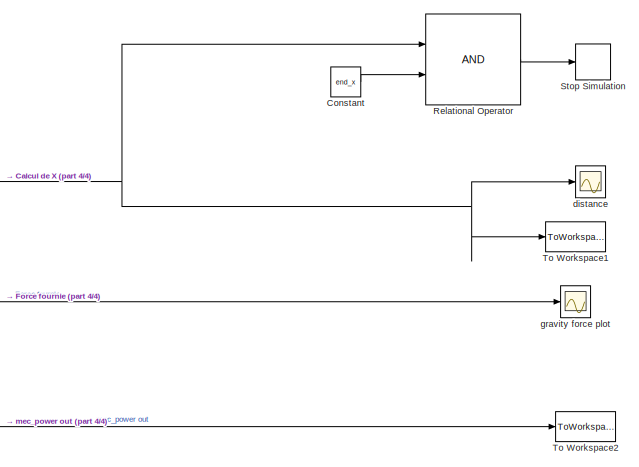
[diagram: root canvas - part 1/4, top right region]
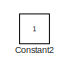
[diagram: root canvas - part 2/4, top left region]
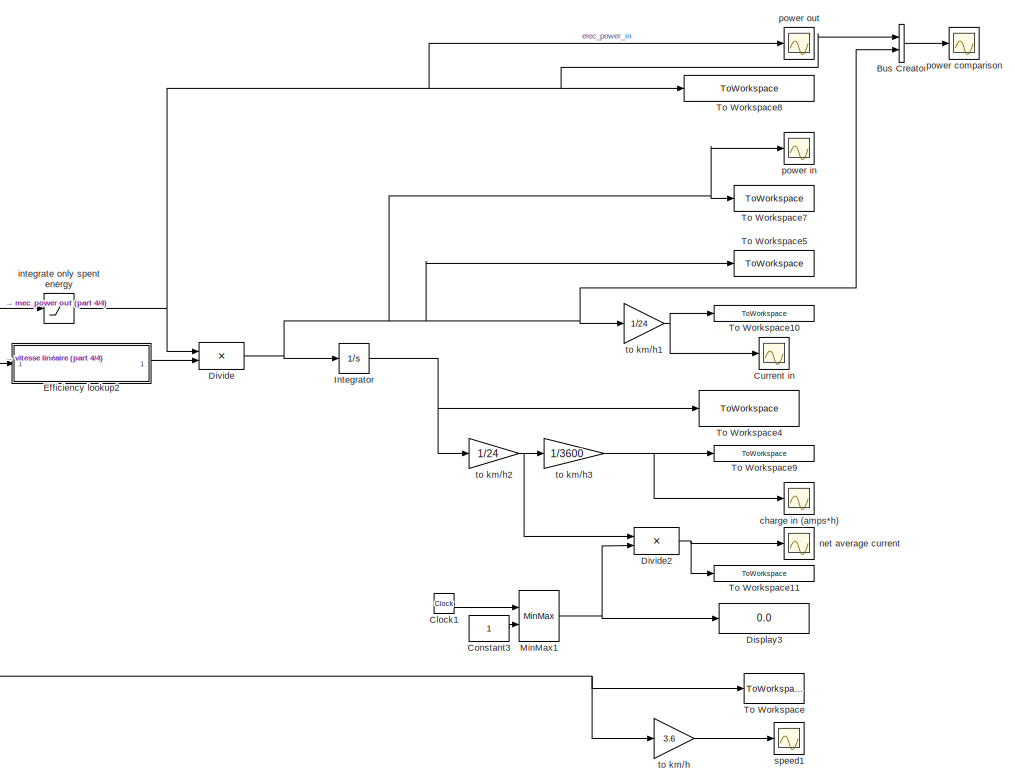
[diagram: root canvas - part 3/4, bottom right region]
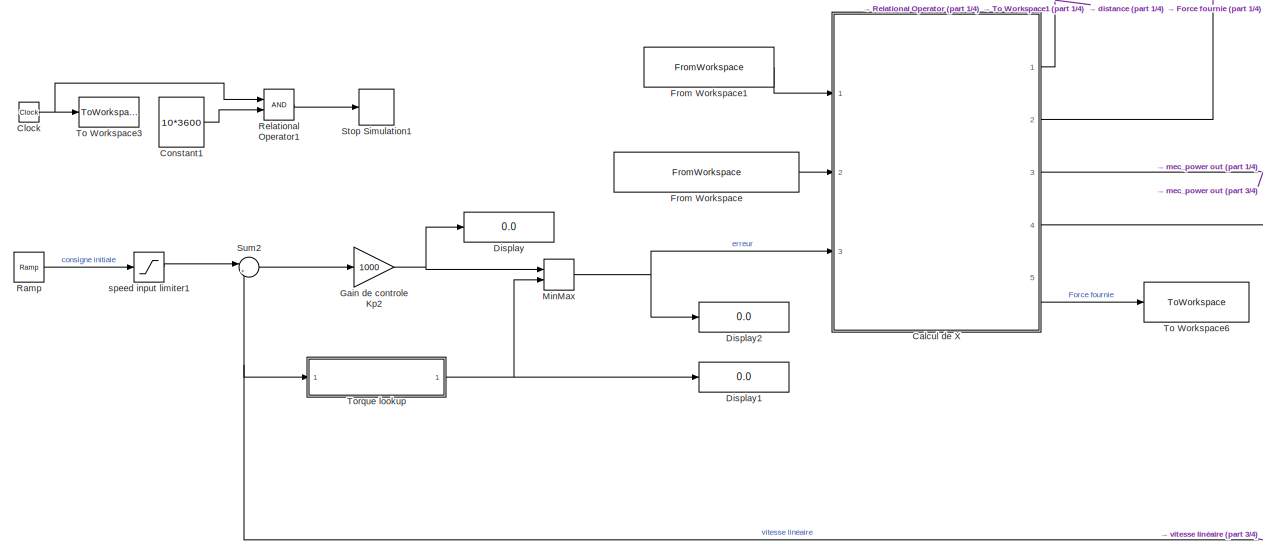
[diagram: root canvas - part 4/4, bottom center region]
MODEL slx_cfe043cab282
KIND model
CONFIG AbsTol = auto
CONFIG FixedStep = 0.2
CONFIG MaxStep = auto
CONFIG MinStep = auto
CONFIG RelTol = 0.001
CONFIG SampleTimeConstraint = Unconstrained
CONFIG Solver = ode45
CONFIG SolverMode = Auto
CONFIG SolverName = ode45
CONFIG StartTime = 0.0
CONFIG StopTime = 3600 *10
BLOCK [BusCreator] Bus Creator
  DisplayOption = bar
  Inputs = 2
  Ports = [2, 1]
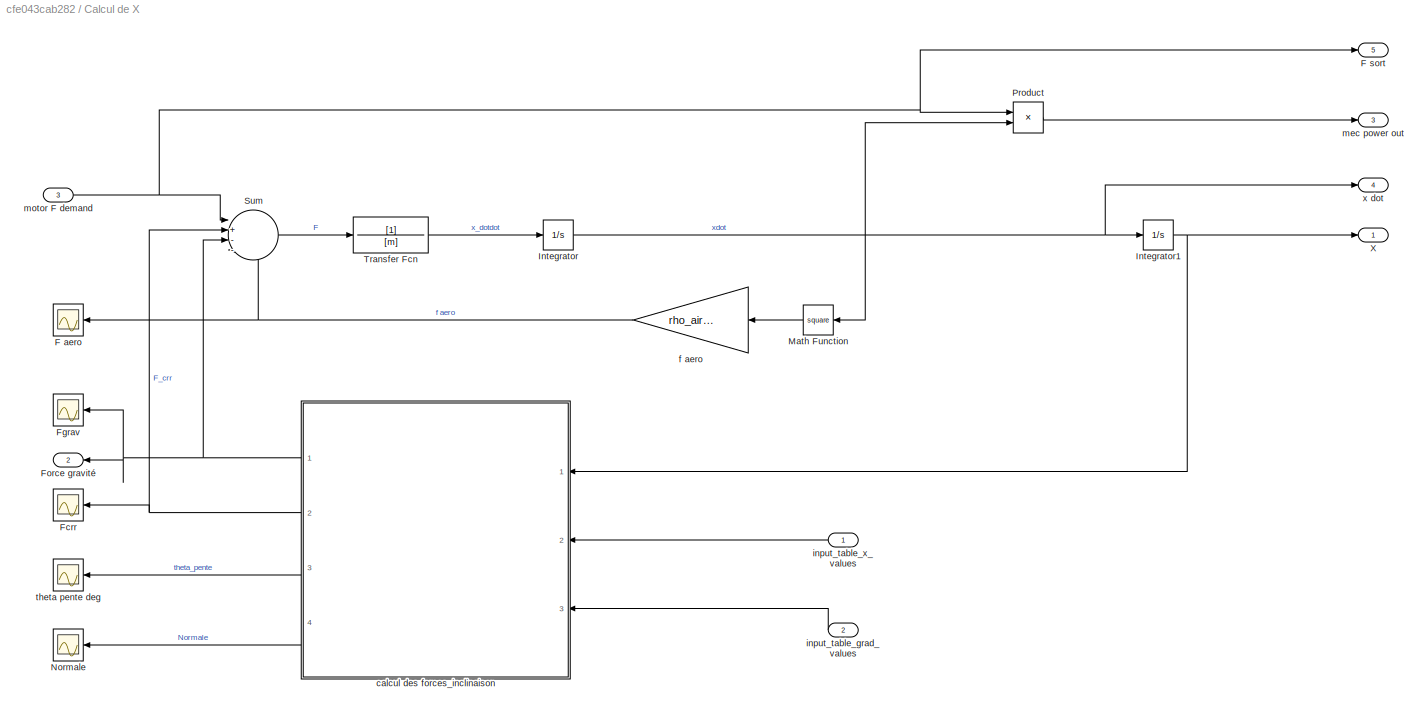
BLOCK [SubSystem] Calcul de X
  Ports = [3, 5]
  RequestExecContextInheritance = off
BLOCK [Scope] Calcul de X/F aero
  Floating = off
  MaxDataPoints = scope_history
  NumInputPorts = 1
  Ports = [1]
  SaveName = ScopeData14
  ZoomMode = xonly
BLOCK [Outport] Calcul de X/F sort
  IconDisplay = Port number
  Port = 5
BLOCK [Scope] Calcul de X/Fcrr
  Floating = off
  MaxDataPoints = scope_history
  NumInputPorts = 1
  Ports = [1]
  SaveName = ScopeData10
BLOCK [Scope] Calcul de X/Fgrav
  Floating = off
  MaxDataPoints = scope_history*3
  NumInputPorts = 1
  Ports = [1]
  SaveName = ScopeData9
  YMax = 70
  YMin = -70
BLOCK [Outport] Calcul de X/Force gravité
  IconDisplay = Port number
  Port = 2
BLOCK [Integrator] Calcul de X/Integrator
  Ports = [1, 1]
BLOCK [Integrator] Calcul de X/Integrator1
  Ports = [1, 1]
BLOCK [Math] Calcul de X/Math Function
  Operator = square
  Ports = [1, 1]
BLOCK [Scope] Calcul de X/Normale
  Floating = off
  MaxDataPoints = scope_history
  NumInputPorts = 1
  Ports = [1]
  SaveName = ScopeData2
BLOCK [Product] Calcul de X/Product
  InputSameDT = off
  OutDataTypeStr = Inherit: Inherit via internal rule
  Ports = [2, 1]
  RndMeth = Floor
  SaturateOnIntegerOverflow = off
BLOCK [Sum] Calcul de X/Sum
  IconShape = round
  InputSameDT = off
  Inputs = |+---
  OutDataTypeStr = Inherit: Inherit via internal rule
  Ports = [4, 1]
  SaturateOnIntegerOverflow = off
BLOCK [TransferFcn] Calcul de X/Transfer Fcn
  Denominator = [m]
BLOCK [Outport] Calcul de X/X
  IconDisplay = Port number
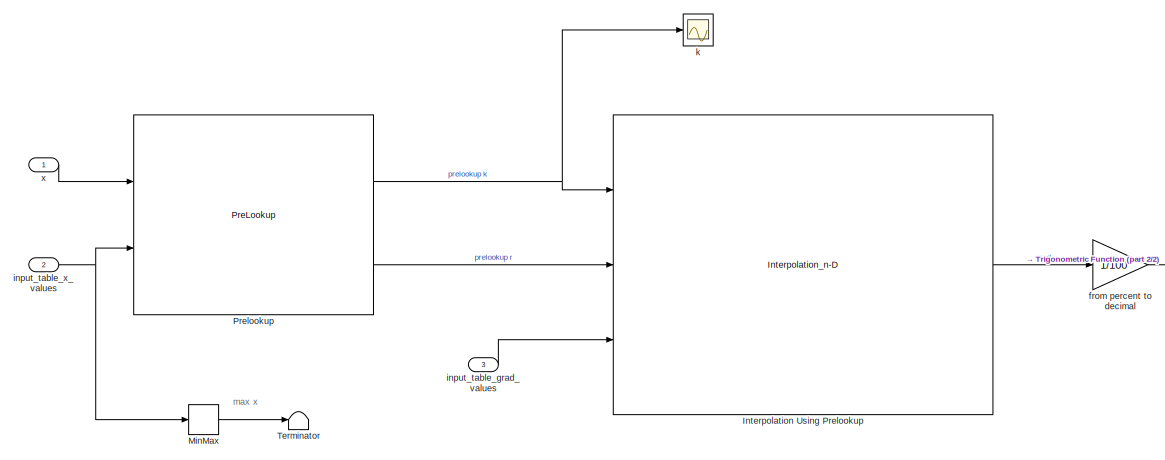
[diagram: Calcul de X/calcul des forces_inclinaison - part 1/2, left side, full height]
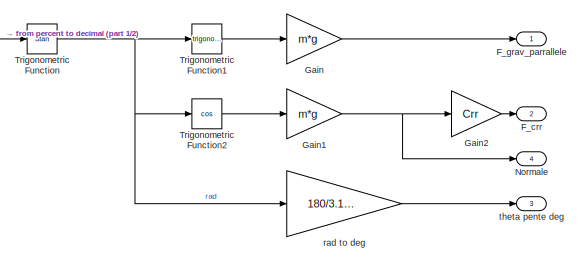
[diagram: Calcul de X/calcul des forces_inclinaison - part 2/2, bottom right region]
BLOCK [SubSystem] Calcul de X/calcul des forces_inclinaison
  Ports = [3, 4]
  RequestExecContextInheritance = off
BLOCK [Outport] Calcul de X/calcul des forces_inclinaison/F_crr
  IconDisplay = Port number
  Port = 2
BLOCK [Outport] Calcul de X/calcul des forces_inclinaison/F_grav_parrallele
  IconDisplay = Port number
BLOCK [Gain] Calcul de X/calcul des forces_inclinaison/Gain
  Gain = m*g
  OutDataTypeStr = Inherit: Inherit via internal rule
  ParamDataTypeStr = Inherit: Inherit via internal rule
  SaturateOnIntegerOverflow = off
BLOCK [Gain] Calcul de X/calcul des forces_inclinaison/Gain1
  Gain = m*g
  OutDataTypeStr = Inherit: Inherit via internal rule
  ParamDataTypeStr = Inherit: Inherit via internal rule
  SaturateOnIntegerOverflow = off
BLOCK [Gain] Calcul de X/calcul des forces_inclinaison/Gain2
  Gain = Crr
  OutDataTypeStr = Inherit: Inherit via internal rule
  ParamDataTypeStr = Inherit: Inherit via internal rule
  SaturateOnIntegerOverflow = off
BLOCK [Interpolation_n-D] Calcul de X/calcul des forces_inclinaison/Interpolation Using Prelookup
  InputPortMap = u0,u1,p2
  IntermediateResultsDataTypeStr = Inherit: Inherit via internal rule
  InternalRulePriority = Speed
  NumberOfTableDimensions = 1
  Ports = [3, 1]
  TableSource = Input port
BLOCK [MinMax] Calcul de X/calcul des forces_inclinaison/MinMax
  Function = max
  InputSameDT = off
  Ports = [1, 1]
  SaturateOnIntegerOverflow = off
BLOCK [Outport] Calcul de X/calcul des forces_inclinaison/Normale
  IconDisplay = Port number
  Port = 4
BLOCK [PreLookup] Calcul de X/calcul des forces_inclinaison/Prelookup
  BreakpointsData = [10:10:110]
  BreakpointsDataSource = Input port
  ExtrapMethod = Linear
  InputPortMap = u0,p1
  Ports = [2, 2]
BLOCK [Terminator] Calcul de X/calcul des forces_inclinaison/Terminator
BLOCK [Trigonometry] Calcul de X/calcul des forces_inclinaison/Trigonometric Function
  Operator = atan
  Ports = [1, 1]
BLOCK [Trigonometry] Calcul de X/calcul des forces_inclinaison/Trigonometric Function1
  Ports = [1, 1]
BLOCK [Trigonometry] Calcul de X/calcul des forces_inclinaison/Trigonometric Function2
  Operator = cos
  Ports = [1, 1]
BLOCK [Gain] Calcul de X/calcul des forces_inclinaison/from percent to decimal
  Gain = 1/100
  OutDataTypeStr = Inherit: Inherit via internal rule
  ParamDataTypeStr = Inherit: Inherit via internal rule
  SaturateOnIntegerOverflow = off
BLOCK [Inport] Calcul de X/calcul des forces_inclinaison/input_table_grad_values
  IconDisplay = Port number
  Port = 3
BLOCK [Inport] Calcul de X/calcul des forces_inclinaison/input_table_x_values
  IconDisplay = Port number
  Port = 2
BLOCK [Scope] Calcul de X/calcul des forces_inclinaison/k
  Floating = off
  MaxDataPoints = scope_history
  NumInputPorts = 1
  Ports = [1]
  SaveName = ScopeData8
BLOCK [Gain] Calcul de X/calcul des forces_inclinaison/rad to deg
  Gain = 180/3.1416
  OutDataTypeStr = Inherit: Inherit via internal rule
  ParamDataTypeStr = Inherit: Inherit via internal rule
  SaturateOnIntegerOverflow = off
BLOCK [Outport] Calcul de X/calcul des forces_inclinaison/theta pente deg
  IconDisplay = Port number
  Port = 3
BLOCK [Inport] Calcul de X/calcul des forces_inclinaison/x
  IconDisplay = Port number
BLOCK [Gain] Calcul de X/f aero
  Gain = rho_air*area/2*Cd
  OutDataTypeStr = Inherit: Inherit via internal rule
  ParamDataTypeStr = Inherit: Inherit via internal rule
  SaturateOnIntegerOverflow = off
BLOCK [Inport] Calcul de X/input_table_grad_values
  IconDisplay = Port number
  Port = 2
BLOCK [Inport] Calcul de X/input_table_x_values
  IconDisplay = Port number
BLOCK [Outport] Calcul de X/mec power out
  IconDisplay = Port number
  Port = 3
BLOCK [Inport] Calcul de X/motor F demand
  IconDisplay = Port number
  Port = 3
BLOCK [Scope] Calcul de X/theta pente deg 
  Floating = off
  MaxDataPoints = scope_history*3
  NumInputPorts = 1
  Ports = [1]
  SaveName = gradiant
  SaveToWorkspace = on
  YMax = 17.5
  YMin = -15
BLOCK [Outport] Calcul de X/x dot
  IconDisplay = Port number
  Port = 4
BLOCK [Clock] Clock
BLOCK [Clock] Clock1
BLOCK [Constant] Constant
  Value = end_x
BLOCK [Constant] Constant1
  Value = 10*3600
BLOCK [Constant] Constant2
  IOType = siggen
BLOCK [Constant] Constant3
BLOCK [Scope] Current in
  Floating = off
  MaxDataPoints = scope_history*3
  NumInputPorts = 1
  Ports = [1]
  SaveName = ScopeData5
  TimeRange = 10000
  YMax = 40
  YMin = 0
  ZoomMode = xonly
BLOCK [Display] Display
  Decimation = 1
  Ports = [1]
BLOCK [Display] Display1
  Decimation = 1
  Ports = [1]
BLOCK [Display] Display2
  Decimation = 1
  Ports = [1]
BLOCK [Display] Display3
  Decimation = 1
  Ports = [1]
BLOCK [Product] Divide
  InputSameDT = off
  Inputs = */
  OutDataTypeStr = Inherit: Inherit via internal rule
  Ports = [2, 1]
  RndMeth = Floor
  SaturateOnIntegerOverflow = off
BLOCK [Product] Divide2
  InputSameDT = off
  Inputs = */
  OutDataTypeStr = Inherit: Inherit via internal rule
  Ports = [2, 1]
  RndMeth = Floor
  SaturateOnIntegerOverflow = off
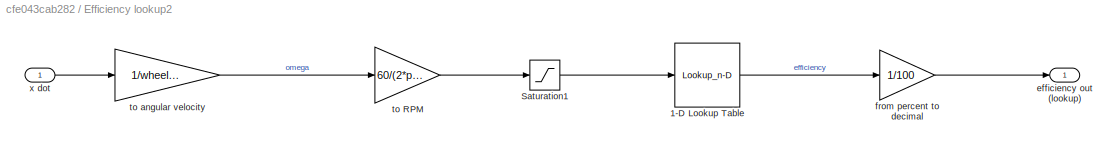
BLOCK [SubSystem] Efficiency lookup2
  Ports = [1, 1]
  RequestExecContextInheritance = off
BLOCK [Lookup_n-D] Efficiency lookup2/1-D Lookup Table
  BreakpointsForDimension1 = input_rpm_vals
  InternalRulePriority = Speed
  NumberOfTableDimensions = 1
  Ports = [1, 1]
  RndMeth = Simplest
  Table = eff_vals
BLOCK [Saturate] Efficiency lookup2/Saturation1
  InputPortMap = u0
  LowerLimit = 10
  Ports = [1, 1]
  UpperLimit = 177
BLOCK [Outport] Efficiency lookup2/efficiency out (lookup)
  IconDisplay = Port number
BLOCK [Gain] Efficiency lookup2/from percent to decimal
  Gain = 1/100
  OutDataTypeStr = Inherit: Inherit via internal rule
  ParamDataTypeStr = Inherit: Inherit via internal rule
  SaturateOnIntegerOverflow = off
BLOCK [Gain] Efficiency lookup2/to RPM
  Gain = 60/(2*pi)
  OutDataTypeStr = Inherit: Inherit via internal rule
  ParamDataTypeStr = Inherit: Inherit via internal rule
  SaturateOnIntegerOverflow = off
BLOCK [Gain] Efficiency lookup2/to angular velocity
  Gain = 1/wheel_radius
  OutDataTypeStr = Inherit: Inherit via internal rule
  ParamDataTypeStr = Inherit: Inherit via internal rule
  SaturateOnIntegerOverflow = off
BLOCK [Inport] Efficiency lookup2/x dot
  IconDisplay = Port number
BLOCK [FromWorkspace] From Workspace
  SampleTime = 0
  VariableName = grad_in
  ZeroCross = on
BLOCK [FromWorkspace] From Workspace1
  SampleTime = 0
  VariableName = x_in_m
  ZeroCross = on
BLOCK [Gain] Gain de controle Kp2
  Gain = 1000
  OutDataTypeStr = Inherit: Inherit via internal rule
  ParamDataTypeStr = Inherit: Inherit via internal rule
  SaturateOnIntegerOverflow = off
BLOCK [Integrator] Integrator
  Ports = [1, 1]
BLOCK [MinMax] MinMax
  InputSameDT = off
  Inputs = 2
  Ports = [2, 1]
  SaturateOnIntegerOverflow = off
BLOCK [MinMax] MinMax1
  Function = max
  InputSameDT = off
  Inputs = 2
  Ports = [2, 1]
  SaturateOnIntegerOverflow = off
BLOCK [Reference] Ramp  REF=simulink/Sources/Ramp
  Ports = [0, 1]
  SourceBlock = simulink/Sources/Ramp
  SourceType = Ramp
  VectorParams1D = on
  X0 = 0
  slope = slope
  start = 0
BLOCK [RelationalOperator] Relational Operator
  InputSameDT = off
  OutDataTypeStr = boolean
  Ports = [2, 1]
BLOCK [RelationalOperator] Relational Operator1
  InputSameDT = off
  OutDataTypeStr = boolean
  Ports = [2, 1]
BLOCK [Stop] Stop Simulation
BLOCK [Stop] Stop Simulation1
BLOCK [Sum] Sum2
  IconShape = round
  InputSameDT = off
  Inputs = |+-
  OutDataTypeStr = Inherit: Inherit via internal rule
  Ports = [2, 1]
  SaturateOnIntegerOverflow = off
BLOCK [ToWorkspace] To Workspace
  FixptAsFi = on
  MaxDataPoints = inf
  Ports = [1]
  SampleTime = -1
  Save2DSignal = 2-D array (concatenate along first dimension)
  VariableName = speed_out
BLOCK [ToWorkspace] To Workspace1
  FixptAsFi = on
  MaxDataPoints = inf
  Ports = [1]
  SampleTime = -1
  Save2DSignal = 2-D array (concatenate along first dimension)
  VariableName = pos_out
BLOCK [ToWorkspace] To Workspace10
  FixptAsFi = on
  MaxDataPoints = inf
  Ports = [1]
  SampleTime = -1
  Save2DSignal = 2-D array (concatenate along first dimension)
  VariableName = current_in
BLOCK [ToWorkspace] To Workspace11
  FixptAsFi = on
  MaxDataPoints = inf
  Ports = [1]
  SampleTime = -1
  Save2DSignal = 2-D array (concatenate along first dimension)
  VariableName = avg_current
BLOCK [ToWorkspace] To Workspace2
  FixptAsFi = on
  MaxDataPoints = inf
  Ports = [1]
  SampleTime = -1
  Save2DSignal = 2-D array (concatenate along first dimension)
  VariableName = p_out
BLOCK [ToWorkspace] To Workspace3
  FixptAsFi = on
  MaxDataPoints = inf
  Ports = [1]
  SampleTime = -1
  Save2DSignal = 2-D array (concatenate along first dimension)
  VariableName = sim_time
BLOCK [ToWorkspace] To Workspace4
  FixptAsFi = on
  MaxDataPoints = inf
  Ports = [1]
  SampleTime = -1
  Save2DSignal = 2-D array (concatenate along first dimension)
  VariableName = inst_spent_energy
BLOCK [ToWorkspace] To Workspace5
  FixptAsFi = on
  MaxDataPoints = inf
  Ports = [1]
  SampleTime = -1
  Save2DSignal = 2-D array (concatenate along first dimension)
  VariableName = p_out_positive
BLOCK [ToWorkspace] To Workspace6
  FixptAsFi = on
  MaxDataPoints = inf
  Ports = [1]
  SampleTime = -1
  Save2DSignal = 2-D array (concatenate along first dimension)
  VariableName = force_out
BLOCK [ToWorkspace] To Workspace7
  FixptAsFi = on
  MaxDataPoints = inf
  Ports = [1]
  SampleTime = -1
  Save2DSignal = 2-D array (concatenate along first dimension)
  VariableName = p_in_positive
BLOCK [ToWorkspace] To Workspace8
  FixptAsFi = on
  MaxDataPoints = inf
  Ports = [1]
  SampleTime = -1
  Save2DSignal = 2-D array (concatenate along first dimension)
  VariableName = p_out_positive_real
BLOCK [ToWorkspace] To Workspace9
  FixptAsFi = on
  MaxDataPoints = inf
  Ports = [1]
  SampleTime = -1
  Save2DSignal = 2-D array (concatenate along first dimension)
  VariableName = charge_in_a_h
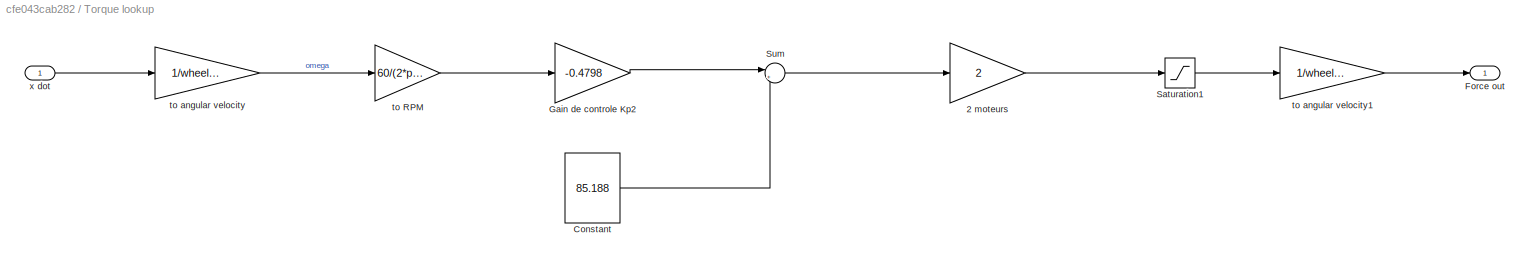
BLOCK [SubSystem] Torque lookup
  Ports = [1, 1]
  RequestExecContextInheritance = off
BLOCK [Gain] Torque lookup/2 moteurs
  Gain = 2
  OutDataTypeStr = Inherit: Inherit via internal rule
  ParamDataTypeStr = Inherit: Inherit via internal rule
  SaturateOnIntegerOverflow = off
BLOCK [Constant] Torque lookup/Constant
  Value = 85.188
BLOCK [Outport] Torque lookup/Force out
  IconDisplay = Port number
BLOCK [Gain] Torque lookup/Gain de controle Kp2
  Gain = -0.4798
  OutDataTypeStr = Inherit: Inherit via internal rule
  ParamDataTypeStr = Inherit: Inherit via internal rule
  SaturateOnIntegerOverflow = off
BLOCK [Saturate] Torque lookup/Saturation1
  InputPortMap = u0
  LowerLimit = -116*3
  Ports = [1, 1]
  UpperLimit = 85.1*2
BLOCK [Sum] Torque lookup/Sum
  IconShape = round
  InputSameDT = off
  Inputs = |++
  OutDataTypeStr = Inherit: Inherit via internal rule
  Ports = [2, 1]
  SaturateOnIntegerOverflow = off
BLOCK [Gain] Torque lookup/to RPM
  Gain = 60/(2*pi)
  OutDataTypeStr = Inherit: Inherit via internal rule
  ParamDataTypeStr = Inherit: Inherit via internal rule
  SaturateOnIntegerOverflow = off
BLOCK [Gain] Torque lookup/to angular velocity
  Gain = 1/wheel_radius
  OutDataTypeStr = Inherit: Inherit via internal rule
  ParamDataTypeStr = Inherit: Inherit via internal rule
  SaturateOnIntegerOverflow = off
BLOCK [Gain] Torque lookup/to angular velocity1
  Gain = 1/wheel_radius
  OutDataTypeStr = Inherit: Inherit via internal rule
  ParamDataTypeStr = Inherit: Inherit via internal rule
  SaturateOnIntegerOverflow = off
BLOCK [Inport] Torque lookup/x dot
  IconDisplay = Port number
BLOCK [Scope] charge in (amps*h)
  Floating = off
  MaxDataPoints = scope_history *3
  NumInputPorts = 1
  Ports = [1]
  SaveName = ScopeData7
  TimeRange = 30000
  YMax = 300000
  YMin = 160000
BLOCK [Scope] distance
  Floating = off
  MaxDataPoints = scope_history
  NumInputPorts = 1
  Ports = [1]
  YMax = 52500
  YMin = 25000
  ZoomMode = yonly
BLOCK [Scope] gravity force plot
  Floating = off
  MaxDataPoints = scope_history
  NumInputPorts = 1
  Ports = [1]
  SaveName = ScopeData1
  YMax = 4.45
  YMin = 3.55
BLOCK [Saturate] integrate only spent energy
  InputPortMap = u0
  LowerLimit = 0
  Ports = [1, 1]
  UpperLimit = fmax*target_speed_m_s*8
BLOCK [Scope] net average current
  Floating = off
  MaxDataPoints = scope_history*3
  NumInputPorts = 1
  Ports = [1]
  SaveName = ScopeData11
  TimeRange = 10000
  YMax = 7.1
  YMin = 5.2
BLOCK [Scope] power comparison
  Floating = off
  MaxDataPoints = scope_history*3
  NumInputPorts = 1
  Ports = [1]
  SaveName = powerin_scope2
  SaveToWorkspace = on
  YMax = 3250
  YMin = 0
  ZoomMode = xonly
BLOCK [Scope] power in
  Floating = off
  MaxDataPoints = scope_history*3
  NumInputPorts = 1
  Ports = [1]
  SaveName = powerin_scope
  SaveToWorkspace = on
  YMax = 425
  YMin = 0
  ZoomMode = xonly
BLOCK [Scope] power out
  Floating = off
  MaxDataPoints = scope_history*3
  NumInputPorts = 1
  Ports = [1]
  SaveName = powerin_scope1
  SaveToWorkspace = on
  YMax = 525
  YMin = 0
BLOCK [Saturate] speed input limiter1
  InputPortMap = u0
  LowerLimit = 0
  Ports = [1, 1]
  UpperLimit = target_speed_m_s
BLOCK [Scope] speed1
  Floating = off
  MaxDataPoints = scope_history*3
  NumInputPorts = 1
  Ports = [1]
  SaveName = speed_kmh_scope
  SaveToWorkspace = on
  YMax = 15.5
  YMin = 7
  ZoomMode = yonly
BLOCK [Gain] to km//h
  Gain = 3.6
  OutDataTypeStr = Inherit: Inherit via internal rule
  ParamDataTypeStr = Inherit: Inherit via internal rule
  SaturateOnIntegerOverflow = off
BLOCK [Gain] to km//h1
  Gain = 1/24
  OutDataTypeStr = Inherit: Inherit via internal rule
  ParamDataTypeStr = Inherit: Inherit via internal rule
  SaturateOnIntegerOverflow = off
BLOCK [Gain] to km//h2
  Gain = 1/24
  OutDataTypeStr = Inherit: Inherit via internal rule
  ParamDataTypeStr = Inherit: Inherit via internal rule
  SaturateOnIntegerOverflow = off
BLOCK [Gain] to km//h3
  Gain = 1/3600
  OutDataTypeStr = Inherit: Inherit via internal rule
  ParamDataTypeStr = Inherit: Inherit via internal rule
  SaturateOnIntegerOverflow = off
ANNOTATION Calcul de X/calcul des forces_inclinaison: max x
LINE Bus Creator:1 -> power comparison:1
NET Calcul de X/Integrator1:1 -> Calcul de X/X:1, Calcul de X/calcul des forces_inclinaison:1
NET Calcul de X/Integrator:1 -> Calcul de X/Integrator1:1, Calcul de X/Math Function:1, Calcul de X/Product:2, Calcul de X/x dot:1
LINE Calcul de X/Math Function:1 -> Calcul de X/f aero:1
LINE Calcul de X/Product:1 -> Calcul de X/mec power out:1
LINE Calcul de X/Sum:1 -> Calcul de X/Transfer Fcn:1
LINE Calcul de X/Transfer Fcn:1 -> Calcul de X/Integrator:1
NET Calcul de X/calcul des forces_inclinaison/Gain1:1 -> Calcul de X/calcul des forces_inclinaison/Gain2:1, Calcul de X/calcul des forces_inclinaison/Normale:1
LINE Calcul de X/calcul des forces_inclinaison/Gain2:1 -> Calcul de X/calcul des forces_inclinaison/F_crr:1
LINE Calcul de X/calcul des forces_inclinaison/Gain:1 -> Calcul de X/calcul des forces_inclinaison/F_grav_parrallele:1
LINE Calcul de X/calcul des forces_inclinaison/Interpolation Using Prelookup:1 -> Calcul de X/calcul des forces_inclinaison/from percent to decimal:1
LINE Calcul de X/calcul des forces_inclinaison/MinMax:1 -> Calcul de X/calcul des forces_inclinaison/Terminator:1
NET Calcul de X/calcul des forces_inclinaison/Prelookup:1 -> Calcul de X/calcul des forces_inclinaison/Interpolation Using Prelookup:1, Calcul de X/calcul des forces_inclinaison/k:1
LINE Calcul de X/calcul des forces_inclinaison/Prelookup:2 -> Calcul de X/calcul des forces_inclinaison/Interpolation Using Prelookup:2
LINE Calcul de X/calcul des forces_inclinaison/Trigonometric Function1:1 -> Calcul de X/calcul des forces_inclinaison/Gain:1
LINE Calcul de X/calcul des forces_inclinaison/Trigonometric Function2:1 -> Calcul de X/calcul des forces_inclinaison/Gain1:1
NET Calcul de X/calcul des forces_inclinaison/Trigonometric Function:1 -> Calcul de X/calcul des forces_inclinaison/Trigonometric Function1:1, Calcul de X/calcul des forces_inclinaison/Trigonometric Function2:1, Calcul de X/calcul des forces_inclinaison/rad to deg:1
LINE Calcul de X/calcul des forces_inclinaison/from percent to decimal:1 -> Calcul de X/calcul des forces_inclinaison/Trigonometric Function:1
LINE Calcul de X/calcul des forces_inclinaison/input_table_grad_values:1 -> Calcul de X/calcul des forces_inclinaison/Interpolation Using Prelookup:3
NET Calcul de X/calcul des forces_inclinaison/input_table_x_values:1 -> Calcul de X/calcul des forces_inclinaison/MinMax:1, Calcul de X/calcul des forces_inclinaison/Prelookup:2
LINE Calcul de X/calcul des forces_inclinaison/rad to deg:1 -> Calcul de X/calcul des forces_inclinaison/theta pente deg:1
LINE Calcul de X/calcul des forces_inclinaison/x:1 -> Calcul de X/calcul des forces_inclinaison/Prelookup:1
NET Calcul de X/calcul des forces_inclinaison:1 -> Calcul de X/Fgrav:1, Calcul de X/Force gravité:1, Calcul de X/Sum:3
NET Calcul de X/calcul des forces_inclinaison:2 -> Calcul de X/Fcrr:1, Calcul de X/Sum:2
LINE Calcul de X/calcul des forces_inclinaison:3 -> Calcul de X/theta pente deg :1
LINE Calcul de X/calcul des forces_inclinaison:4 -> Calcul de X/Normale:1
NET Calcul de X/f aero:1 -> Calcul de X/F aero:1, Calcul de X/Sum:4
LINE Calcul de X/input_table_grad_values:1 -> Calcul de X/calcul des forces_inclinaison:3
LINE Calcul de X/input_table_x_values:1 -> Calcul de X/calcul des forces_inclinaison:2
NET Calcul de X/motor F demand:1 -> Calcul de X/F sort:1, Calcul de X/Product:1, Calcul de X/Sum:1
NET Calcul de X:1 -> Relational Operator:1, To Workspace1:1, distance:1
LINE Calcul de X:2 -> gravity force plot:1
NET Calcul de X:3 -> To Workspace2:1, integrate only spent energy:1
NET Calcul de X:4 -> Efficiency lookup2:1, Sum2:2, To Workspace:1, Torque lookup:1, to km//h:1
LINE Calcul de X:5 -> To Workspace6:1
LINE Clock1:1 -> MinMax1:1
NET Clock:1 -> Relational Operator1:1, To Workspace3:1
LINE Constant1:1 -> Relational Operator1:2
LINE Constant3:1 -> MinMax1:2
LINE Constant:1 -> Relational Operator:2
NET Divide2:1 -> To Workspace11:1, net average current:1
NET Divide:1 -> Bus Creator:2, Integrator:1, To Workspace5:1, To Workspace7:1, power in:1, to km//h1:1
LINE Efficiency lookup2/1-D Lookup Table:1 -> Efficiency lookup2/from percent to decimal:1
LINE Efficiency lookup2/Saturation1:1 -> Efficiency lookup2/1-D Lookup Table:1
LINE Efficiency lookup2/from percent to decimal:1 -> Efficiency lookup2/efficiency out (lookup):1
LINE Efficiency lookup2/to RPM:1 -> Efficiency lookup2/Saturation1:1
LINE Efficiency lookup2/to angular velocity:1 -> Efficiency lookup2/to RPM:1
LINE Efficiency lookup2/x dot:1 -> Efficiency lookup2/to angular velocity:1
LINE Efficiency lookup2:1 -> Divide:2
LINE From Workspace1:1 -> Calcul de X:1
LINE From Workspace:1 -> Calcul de X:2
NET Gain de controle Kp2:1 -> Display:1, MinMax:1
NET Integrator:1 -> To Workspace4:1, to km//h2:1
NET MinMax1:1 -> Display3:1, Divide2:2
NET MinMax:1 -> Calcul de X:3, Display2:1
LINE Ramp:1 -> speed input limiter1:1
LINE Relational Operator1:1 -> Stop Simulation1:1
LINE Relational Operator:1 -> Stop Simulation:1
LINE Sum2:1 -> Gain de controle Kp2:1
LINE Torque lookup/2 moteurs:1 -> Torque lookup/Saturation1:1
LINE Torque lookup/Constant:1 -> Torque lookup/Sum:2
LINE Torque lookup/Gain de controle Kp2:1 -> Torque lookup/Sum:1
LINE Torque lookup/Saturation1:1 -> Torque lookup/to angular velocity1:1
LINE Torque lookup/Sum:1 -> Torque lookup/2 moteurs:1
LINE Torque lookup/to RPM:1 -> Torque lookup/Gain de controle Kp2:1
LINE Torque lookup/to angular velocity1:1 -> Torque lookup/Force out:1
LINE Torque lookup/to angular velocity:1 -> Torque lookup/to RPM:1
LINE Torque lookup/x dot:1 -> Torque lookup/to angular velocity:1
NET Torque lookup:1 -> Display1:1, MinMax:2
NET integrate only spent energy:1 -> Bus Creator:1, Divide:1, To Workspace8:1, power out:1
LINE speed input limiter1:1 -> Sum2:1
NET to km//h1:1 -> Current in:1, To Workspace10:1
NET to km//h2:1 -> Divide2:1, to km//h3:1
NET to km//h3:1 -> To Workspace9:1, charge in (amps*h):1
LINE to km//h:1 -> speed1:1
note: NET lines group one-source signal fan-out (src -> all destinations, sorted); 1:1 wires keep LINE
